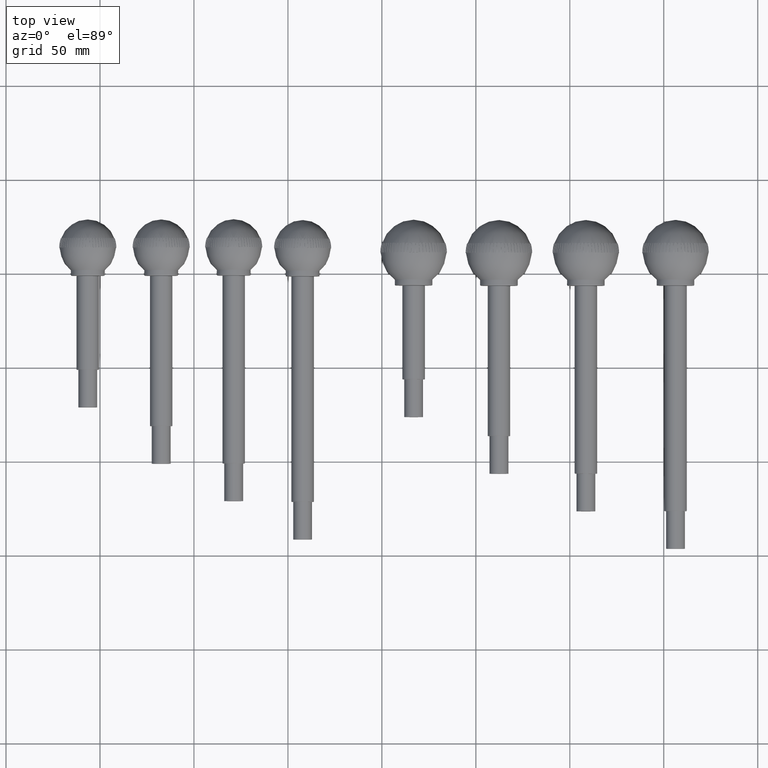
[diagram: clean part render]
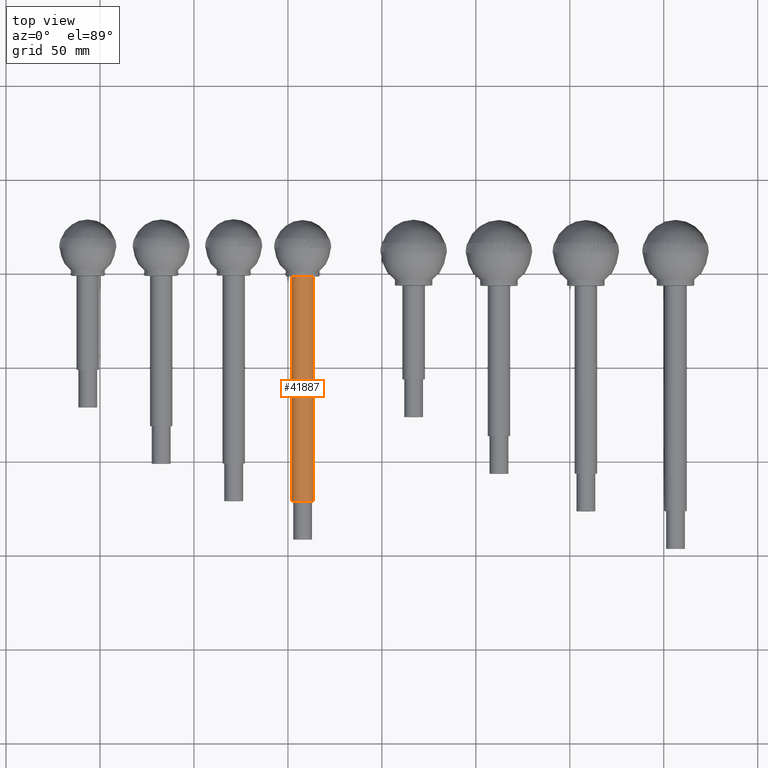
[diagram: same view with one face highlighted and labeled with its STEP entity id]
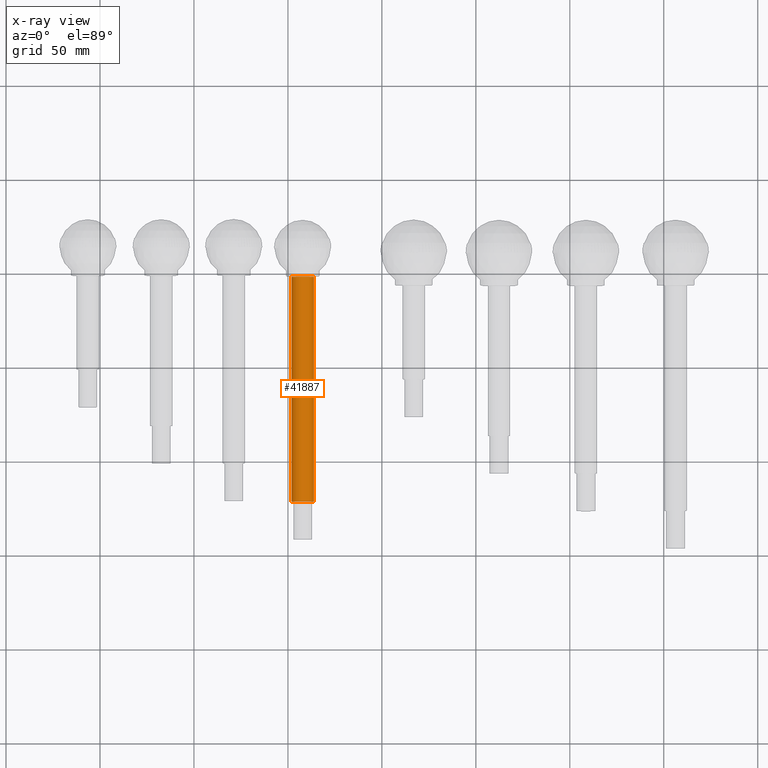
[diagram: x-ray of the same camera — body ghosted, the highlighted face saturated]
A machine part, top view. The second image highlights one B-rep face of the part: STEP entity #41887.
The next image is the same camera in x-ray: the body ghosted, the highlighted face saturated — about 0% of this face is hidden behind the body in this view.
In plain terms, the highlighted cylindrical surface (bore or boss wall) has radius 5.975 mm, axis along (0, 1, -0).
Its self-contained STEP definition (entity closure, byte-faithful):
#6484=CYLINDRICAL_SURFACE('',#46406,5.97500000000003);
#6785=FACE_BOUND('',#11126,.T.);
#8327=FACE_OUTER_BOUND('',#11125,.T.);
#11125=EDGE_LOOP('',(#32285));
#11126=EDGE_LOOP('',(#32286));
#14647=CIRCLE('',#46404,5.97500000000003);
#14649=CIRCLE('',#46407,5.97500000000003);
#18591=VERTEX_POINT('',#70787);
#18593=VERTEX_POINT('',#70792);
#23495=EDGE_CURVE('',#18591,#18591,#14647,.T.);
#23497=EDGE_CURVE('',#18593,#18593,#14649,.T.);
#32285=ORIENTED_EDGE('',*,*,#23497,.F.);
#32286=ORIENTED_EDGE('',*,*,#23495,.F.);
#41887=ADVANCED_FACE('',(#8327,#6785),#6484,.T.);
#46404=AXIS2_PLACEMENT_3D('',#70788,#57110,#57111);
#46406=AXIS2_PLACEMENT_3D('',#70791,#57114,#57115);
#46407=AXIS2_PLACEMENT_3D('',#70793,#57116,#57117);
#57110=DIRECTION('center_axis',(1.,0.,0.));
#57111=DIRECTION('ref_axis',(0.,-1.,0.));
#57114=DIRECTION('center_axis',(1.,0.,0.));
#57115=DIRECTION('ref_axis',(0.,1.,0.));
#57116=DIRECTION('center_axis',(-1.,0.,0.));
#57117=DIRECTION('ref_axis',(0.,-1.,0.));
#70787=CARTESIAN_POINT('',(139.8,5.97500000000003,7.31726462490547E-16));
#70788=CARTESIAN_POINT('Origin',(139.8,0.,0.));
#70791=CARTESIAN_POINT('Origin',(80.,0.,0.));
#70792=CARTESIAN_POINT('',(20.2,5.97500000000003,-7.31726462490547E-16));
#70793=CARTESIAN_POINT('Origin',(20.2,0.,0.));